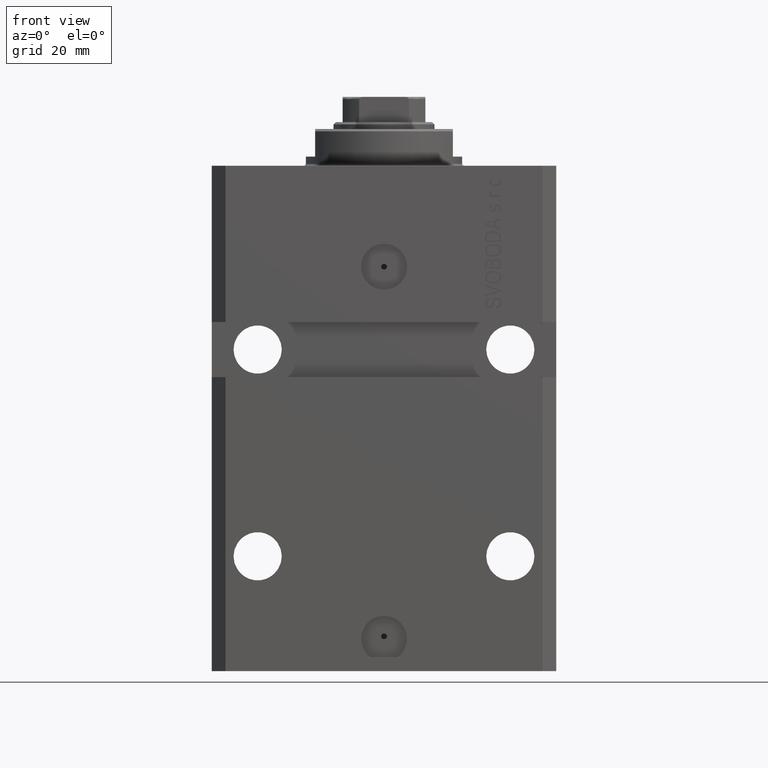
[diagram: clean part render]
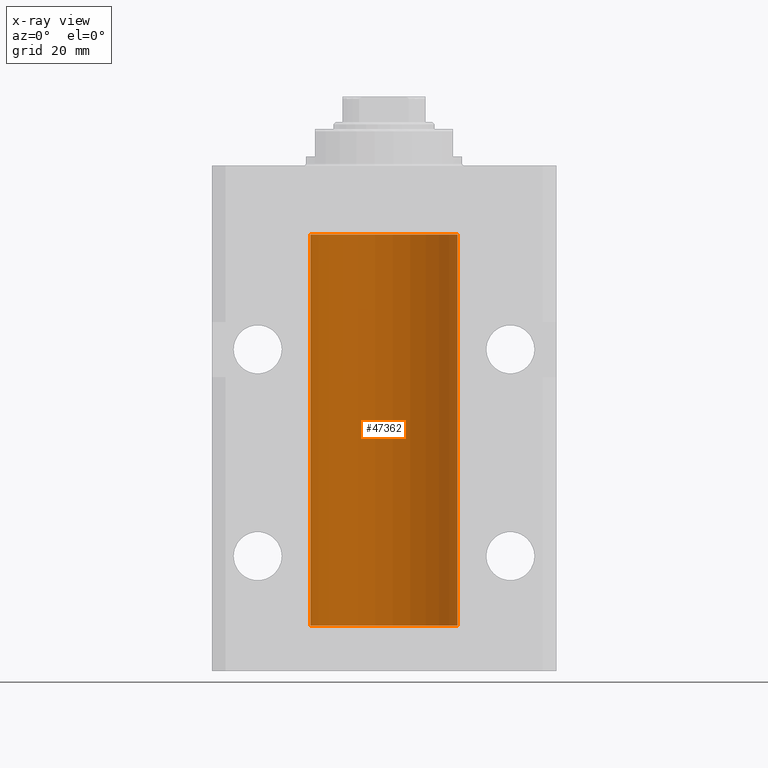
[diagram: x-ray — body ghosted, one internal face saturated and labeled with its STEP entity id]
A machine part, front view, then the same camera in x-ray: the body is ghosted and one INTERNAL B-rep face — a face not visible from any outside direction — is saturated and labeled: STEP entity #47362.
In plain terms, the highlighted cylindrical surface (partial cylindrical patch) has radius 16 mm, axis along (0, 0, 1).
Its self-contained STEP definition (entity closure, byte-faithful):
#463 = CARTESIAN_POINT ( 'NONE',  ( -16.00000000000000000, 0.1631714642025800244, -22.62499999999985789 ) ) ;
#1309 = VERTEX_POINT ( 'NONE', #46882 ) ;
#1677 = CARTESIAN_POINT ( 'NONE',  ( -16.00000000000013145, 3.685127046438747128E-13, -98.62500000000343903 ) ) ;
#1866 = LINE ( 'NONE', #38034, #21996 ) ;
#2018 = DIRECTION ( 'NONE',  ( -0.000000000000000000, -0.000000000000000000, 1.000000000000000000 ) ) ;
#3092 = DIRECTION ( 'NONE',  ( 0.000000000000000000, 0.000000000000000000, 1.000000000000000000 ) ) ;
#3321 = CIRCLE ( 'NONE', #30093, 16.00000000000000000 ) ;
#3943 = VECTOR ( 'NONE', #2018, 1000.000000000000000 ) ;
#3981 = DIRECTION ( 'NONE',  ( 1.000000000000000000, 0.000000000000000000, 0.000000000000000000 ) ) ;
#4071 = CARTESIAN_POINT ( 'NONE',  ( -16.00000000000013145, 3.685127046438747128E-13, -98.62500000000343903 ) ) ;
#4913 = LINE ( 'NONE', #30542, #47371 ) ;
#4999 = CARTESIAN_POINT ( 'NONE',  ( -15.98844267028591482, 0.6088369347963316081, -22.16324735024328518 ) ) ;
#6273 = VERTEX_POINT ( 'NONE', #1677 ) ;
#7195 = CARTESIAN_POINT ( 'NONE',  ( -15.99548640841682712, 0.3843705577988784650, -97.50046628527007897 ) ) ;
#7828 = ORIENTED_EDGE ( 'NONE', *, *, #13259, .T. ) ;
#7913 = CARTESIAN_POINT ( 'NONE',  ( -15.99711699979841661, 0.3253759916140614439, -98.55856151623174810 ) ) ;
#8064 = CARTESIAN_POINT ( 'NONE',  ( 0.000000000000000000, 0.000000000000000000, -100.0999999999999943 ) ) ;
#8120 = CARTESIAN_POINT ( 'NONE',  ( 16.00000000000000000, 0.000000000000000000, -15.00000000000000000 ) ) ;
#8137 = CARTESIAN_POINT ( 'NONE',  ( -15.99070653155267685, 0.5573233280232986475, -21.67348148680506625 ) ) ;
#8606 = CARTESIAN_POINT ( 'NONE',  ( -16.00000000000000711, 0.08259886010189904093, -21.37500000000000000 ) ) ;
#12810 = LINE ( 'NONE', #20955, #3943 ) ;
#13259 = EDGE_CURVE ( 'NONE', #14130, #6273, #30100, .T. ) ;
#14130 = VERTEX_POINT ( 'NONE', #29013 ) ;
#14288 = EDGE_CURVE ( 'NONE', #44812, #19965, #3321, .T. ) ;
#14441 = ORIENTED_EDGE ( 'NONE', *, *, #17714, .T. ) ;
#14810 = ORIENTED_EDGE ( 'NONE', *, *, #14288, .T. ) ;
#15792 = CARTESIAN_POINT ( 'NONE',  ( -15.99934216141748244, 0.1636497843296417787, -21.39126528029306229 ) ) ;
#17389 = ORIENTED_EDGE ( 'NONE', *, *, #38164, .F. ) ;
#17714 = EDGE_CURVE ( 'NONE', #1309, #18096, #42298, .T. ) ;
#18096 = VERTEX_POINT ( 'NONE', #24105 ) ;
#18353 = AXIS2_PLACEMENT_3D ( 'NONE', #24576, #21216, #35566 ) ;
#18475 = CARTESIAN_POINT ( 'NONE',  ( -15.98779057735153941, 0.6249419637998017141, -97.83670145863504786 ) ) ;
#19170 = LINE ( 'NONE', #26826, #35529 ) ;
#19553 = FACE_OUTER_BOUND ( 'NONE', #29263, .T. ) ;
#19965 = VERTEX_POINT ( 'NONE', #34212 ) ;
#20955 = CARTESIAN_POINT ( 'NONE',  ( -16.00000000000000000, 1.959434878635765131E-15, -100.0999999999999943 ) ) ;
#21216 = DIRECTION ( 'NONE',  ( 0.000000000000000000, 0.000000000000000000, 1.000000000000000000 ) ) ;
#21996 = VECTOR ( 'NONE', #44344, 1000.000000000000000 ) ;
#22232 = CARTESIAN_POINT ( 'NONE',  ( -16.00000000000000000, 1.959434878635765131E-15, -100.0999999999999943 ) ) ;
#22282 = CARTESIAN_POINT ( 'NONE',  ( -15.99999999999998934, 0.1631714642025804407, -98.62499999999987210 ) ) ;
#22500 = CARTESIAN_POINT ( 'NONE',  ( -16.00000000000013145, 3.685127038166941002E-13, -22.62500000000341771 ) ) ;
#22737 = CARTESIAN_POINT ( 'NONE',  ( -15.99228023727724413, 0.5003781296993413674, -22.38347829554236057 ) ) ;
#24105 = CARTESIAN_POINT ( 'NONE',  ( -16.00000000000013145, 3.685127038166941002E-13, -22.62500000000341771 ) ) ;
#24186 = CARTESIAN_POINT ( 'NONE',  ( 0.000000000000000000, 0.000000000000000000, -15.00000000000000000 ) ) ;
#24576 = CARTESIAN_POINT ( 'NONE',  ( 0.000000000000000000, 0.000000000000000000, -100.0999999999999943 ) ) ;
#25886 = CARTESIAN_POINT ( 'NONE',  ( -15.99070426498503572, 0.5462220647145610286, -98.31460064614144301 ) ) ;
#26123 = CARTESIAN_POINT ( 'NONE',  ( -16.00000000000000711, 0.08259886010188650929, -97.37500000000000000 ) ) ;
#26441 = EDGE_CURVE ( 'NONE', #34992, #44812, #1866, .T. ) ;
#26578 = CARTESIAN_POINT ( 'NONE',  ( -16.00000000000000000, 1.643679961284177128E-16, -21.37499999999999645 ) ) ;
#26815 = CARTESIAN_POINT ( 'NONE',  ( -15.98779057735153941, 0.6249419637998100407, -21.83670145863507273 ) ) ;
#26826 = CARTESIAN_POINT ( 'NONE',  ( -16.00000000000000000, 1.959434878635765131E-15, -100.0999999999999943 ) ) ;
#28923 = VERTEX_POINT ( 'NONE', #22232 ) ;
#29013 = CARTESIAN_POINT ( 'NONE',  ( -16.00000000000000000, -1.303459030566954747E-14, -97.37500000000000000 ) ) ;
#29263 = EDGE_LOOP ( 'NONE', ( #31784, #42189, #38328, #14810, #46046, #14441, #17389, #7828 ) ) ;
#29856 = DIRECTION ( 'NONE',  ( -0.000000000000000000, -0.000000000000000000, 1.000000000000000000 ) ) ;
#30093 = AXIS2_PLACEMENT_3D ( 'NONE', #24186, #3092, #38784 ) ;
#30100 = B_SPLINE_CURVE_WITH_KNOTS ( 'NONE', 3,
 ( #36642, #26123, #36877, #46948, #7195, #44305, #18475, #39772, #32589, #25886, #40702, #7913, #22282, #4071 ),
 .UNSPECIFIED., .F., .F.,
 ( 4, 2, 2, 2, 2, 2, 4 ),
 ( 1.003919637555167698E-18, 0.0002442776652680894158, 0.0004885553305361776391, 0.0009771106610723541940, 0.001221388326340463017, 0.001465665991608572274, 0.001954221322144760863 ),
 .UNSPECIFIED. ) ;
#30391 = CARTESIAN_POINT ( 'NONE',  ( -15.99070426498503217, 0.5462220647145618058, -22.31460064614143590 ) ) ;
#30542 = CARTESIAN_POINT ( 'NONE',  ( -16.00000000000000000, 1.959434878635765131E-15, -100.0999999999999943 ) ) ;
#31784 = ORIENTED_EDGE ( 'NONE', *, *, #37132, .F. ) ;
#32589 = CARTESIAN_POINT ( 'NONE',  ( -15.98844267028590949, 0.6088369347963275002, -98.16324735024325321 ) ) ;
#33439 = AXIS2_PLACEMENT_3D ( 'NONE', #8064, #29856, #3981 ) ;
#33756 = DIRECTION ( 'NONE',  ( -0.000000000000000000, -0.000000000000000000, 1.000000000000000000 ) ) ;
#33975 = CARTESIAN_POINT ( 'NONE',  ( -15.99548640841683067, 0.3843705577988847377, -21.50046628527008608 ) ) ;
#34212 = CARTESIAN_POINT ( 'NONE',  ( -16.00000000000000000, 1.959434878635765131E-15, -15.00000000000000000 ) ) ;
#34232 = EDGE_CURVE ( 'NONE', #1309, #19965, #4913, .T. ) ;
#34919 = EDGE_CURVE ( 'NONE', #34992, #28923, #36671, .T. ) ;
#34992 = VERTEX_POINT ( 'NONE', #46338 ) ;
#35529 = VECTOR ( 'NONE', #33756, 1000.000000000000000 ) ;
#35566 = DIRECTION ( 'NONE',  ( 1.000000000000000000, 0.000000000000000000, 0.000000000000000000 ) ) ;
#36642 = CARTESIAN_POINT ( 'NONE',  ( -16.00000000000000000, -1.303459030566954747E-14, -97.37500000000000000 ) ) ;
#36671 = CIRCLE ( 'NONE', #18353, 16.00000000000000000 ) ;
#36877 = CARTESIAN_POINT ( 'NONE',  ( -15.99934216141748244, 0.1636497843296308152, -97.39126528029306940 ) ) ;
#37132 = EDGE_CURVE ( 'NONE', #28923, #6273, #12810, .T. ) ;
#38034 = CARTESIAN_POINT ( 'NONE',  ( 16.00000000000000000, 0.000000000000000000, -100.0999999999999943 ) ) ;
#38164 = EDGE_CURVE ( 'NONE', #14130, #18096, #19170, .T. ) ;
#38328 = ORIENTED_EDGE ( 'NONE', *, *, #26441, .T. ) ;
#38784 = DIRECTION ( 'NONE',  ( 1.000000000000000000, 0.000000000000000000, 0.000000000000000000 ) ) ;
#39772 = CARTESIAN_POINT ( 'NONE',  ( -15.98778717651346604, 0.6250289588122097673, -98.08131585687051768 ) ) ;
#40702 = CARTESIAN_POINT ( 'NONE',  ( -15.99228023727724057, 0.5003781296993360383, -98.38347829554236057 ) ) ;
#40927 = CARTESIAN_POINT ( 'NONE',  ( -15.98778717651346071, 0.6250289588122140971, -22.08131585687052478 ) ) ;
#42189 = ORIENTED_EDGE ( 'NONE', *, *, #34919, .F. ) ;
#42298 = B_SPLINE_CURVE_WITH_KNOTS ( 'NONE', 3,
 ( #26578, #8606, #15792, #44746, #33975, #8137, #26815, #40927, #4999, #30391, #22737, #45225, #463, #22500 ),
 .UNSPECIFIED., .F., .F.,
 ( 4, 2, 2, 2, 2, 2, 4 ),
 ( 1.597328219370744179E-19, 0.0002442776652680942405, 0.0004885553305361882643, 0.0009771106610723839011, 0.001221388326340481665, 0.001465665991608579430, 0.001954221322144767369 ),
 .UNSPECIFIED. ) ;
#44305 = CARTESIAN_POINT ( 'NONE',  ( -15.99070653155267685, 0.5573233280232928744, -97.67348148680505915 ) ) ;
#44344 = DIRECTION ( 'NONE',  ( -0.000000000000000000, -0.000000000000000000, 1.000000000000000000 ) ) ;
#44746 = CARTESIAN_POINT ( 'NONE',  ( -15.99707730059171240, 0.3150375992092407373, -21.45402333202571654 ) ) ;
#44812 = VERTEX_POINT ( 'NONE', #8120 ) ;
#44909 = CYLINDRICAL_SURFACE ( 'NONE', #33439, 16.00000000000000000 ) ;
#45225 = CARTESIAN_POINT ( 'NONE',  ( -15.99711699979842017, 0.3253759916140657737, -22.55856151623175521 ) ) ;
#45609 = DIRECTION ( 'NONE',  ( -0.000000000000000000, -0.000000000000000000, 1.000000000000000000 ) ) ;
#46046 = ORIENTED_EDGE ( 'NONE', *, *, #34232, .F. ) ;
#46338 = CARTESIAN_POINT ( 'NONE',  ( 16.00000000000000000, 0.000000000000000000, -100.0999999999999943 ) ) ;
#46882 = CARTESIAN_POINT ( 'NONE',  ( -16.00000000000000000, 1.643679961284177128E-16, -21.37499999999999645 ) ) ;
#46948 = CARTESIAN_POINT ( 'NONE',  ( -15.99707730059171240, 0.3150375992092294686, -97.45402333202572720 ) ) ;
#47362 = ADVANCED_FACE ( 'NONE', ( #19553 ), #44909, .F. ) ;
#47371 = VECTOR ( 'NONE', #45609, 1000.000000000000000 ) ;